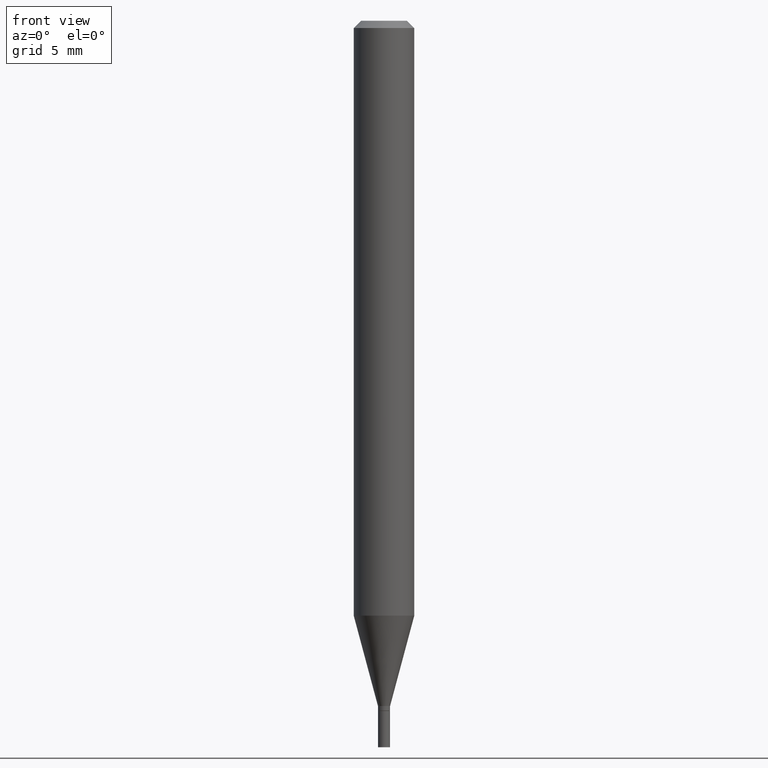
[diagram: clean part render]
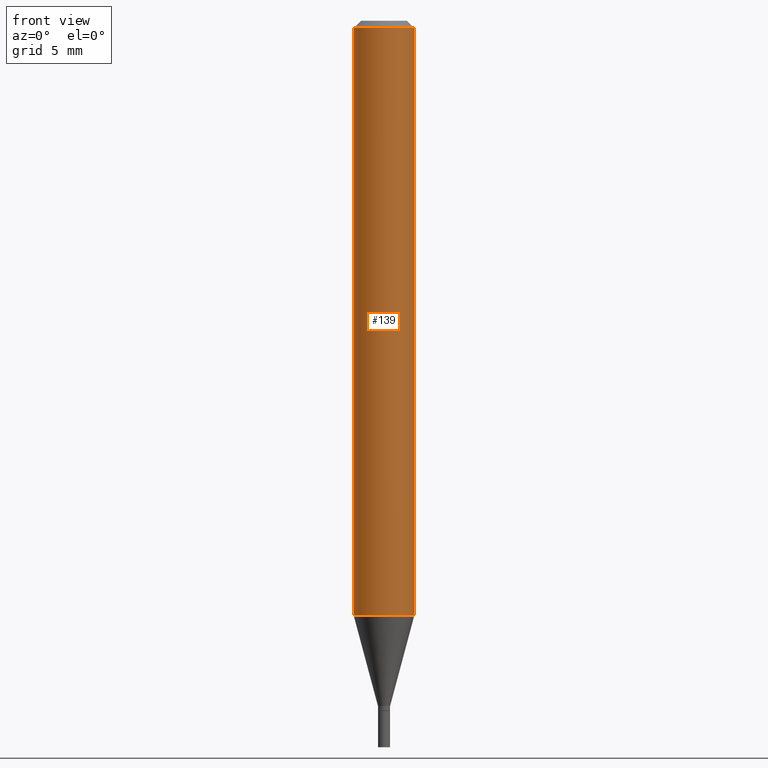
[diagram: same view with one face highlighted and labeled with its STEP entity id]
A machine part, front view. The second image highlights one B-rep face of the part: STEP entity #139.
In plain terms, the highlighted cylindrical surface (edge-blend (fillet) strip) has radius 1.5875 mm, axis along (-0, 0, 1).
Its self-contained STEP definition (entity closure, byte-faithful):
#1 = EDGE_LOOP ( 'NONE', ( #147, #62, #328, #219 ) ) ;
#20 = EDGE_CURVE ( 'NONE', #76, #345, #414, .T. ) ;
#26 = LINE ( 'NONE', #126, #421 ) ;
#44 = DIRECTION ( 'NONE',  ( 1.000000000000000000, -6.982962677686266711E-15, 4.876176775795935793E-29 ) ) ;
#51 = CARTESIAN_POINT ( 'NONE',  ( -0.06250000000000000000, -1.726560303666755986E-15, -0.01499999999999999944 ) ) ;
#62 = ORIENTED_EDGE ( 'NONE', *, *, #417, .T. ) ;
#68 = CARTESIAN_POINT ( 'NONE',  ( -0.06250000000000001388, -3.844837597100926719E-15, -1.228397459621556109 ) ) ;
#76 = VERTEX_POINT ( 'NONE', #51 ) ;
#92 = CARTESIAN_POINT ( 'NONE',  ( 3.004007669101581496E-29, -4.288926806950990124E-15, -1.228397459621556109 ) ) ;
#102 = FACE_OUTER_BOUND ( 'NONE', #1, .T. ) ;
#115 = AXIS2_PLACEMENT_3D ( 'NONE', #92, #457, #124 ) ;
#122 = DIRECTION ( 'NONE',  ( 1.000000000000000000, -6.982962677686266711E-15, 0.000000000000000000 ) ) ;
#123 = DIRECTION ( 'NONE',  ( -2.445468806185136597E-29, 3.491481338843145583E-15, 1.000000000000000000 ) ) ;
#124 = DIRECTION ( 'NONE',  ( 1.000000000000000000, -6.982962677686262766E-15, 0.000000000000000000 ) ) ;
#126 = CARTESIAN_POINT ( 'NONE',  ( 0.06250000000000000000, -4.364351673553916694E-16, 3.047610484872459871E-30 ) ) ;
#138 = DIRECTION ( 'NONE',  ( -2.445468806185136877E-29, 3.491481338843145188E-15, 1.000000000000000000 ) ) ;
#139 = ADVANCED_FACE ( 'NONE', ( #102 ), #260, .T. ) ;
#147 = ORIENTED_EDGE ( 'NONE', *, *, #188, .F. ) ;
#157 = CIRCLE ( 'NONE', #115, 0.06250000000000000000 ) ;
#188 = EDGE_CURVE ( 'NONE', #258, #76, #370, .T. ) ;
#193 = CARTESIAN_POINT ( 'NONE',  ( 3.668203209277705088E-31, -5.237222008264718399E-17, -0.01499999999999999944 ) ) ;
#197 = AXIS2_PLACEMENT_3D ( 'NONE', #193, #123, #122 ) ;
#215 = DIRECTION ( 'NONE',  ( -2.445468806185136597E-29, 3.491481338843145583E-15, 1.000000000000000000 ) ) ;
#219 = ORIENTED_EDGE ( 'NONE', *, *, #20, .F. ) ;
#256 = CARTESIAN_POINT ( 'NONE',  ( 0.000000000000000000, 0.000000000000000000, 0.000000000000000000 ) ) ;
#258 = VERTEX_POINT ( 'NONE', #68 ) ;
#260 = CYLINDRICAL_SURFACE ( 'NONE', #276, 0.06250000000000000000 ) ;
#276 = AXIS2_PLACEMENT_3D ( 'NONE', #256, #215, #44 ) ;
#323 = CARTESIAN_POINT ( 'NONE',  ( 0.06250000000000000000, -4.888073874380388472E-16, -0.01499999999999999944 ) ) ;
#328 = ORIENTED_EDGE ( 'NONE', *, *, #381, .T. ) ;
#338 = VERTEX_POINT ( 'NONE', #352 ) ;
#341 = VECTOR ( 'NONE', #138, 39.37007874015748143 ) ;
#345 = VERTEX_POINT ( 'NONE', #323 ) ;
#352 = CARTESIAN_POINT ( 'NONE',  ( 0.06250000000000001388, -4.725361974306381794E-15, -1.228397459621556109 ) ) ;
#355 = DIRECTION ( 'NONE',  ( -2.445468806185136877E-29, 3.491481338843145188E-15, 1.000000000000000000 ) ) ;
#370 = LINE ( 'NONE', #435, #341 ) ;
#381 = EDGE_CURVE ( 'NONE', #338, #345, #26, .T. ) ;
#414 = CIRCLE ( 'NONE', #197, 0.06250000000000000000 ) ;
#417 = EDGE_CURVE ( 'NONE', #258, #338, #157, .T. ) ;
#421 = VECTOR ( 'NONE', #355, 39.37007874015748143 ) ;
#435 = CARTESIAN_POINT ( 'NONE',  ( -0.06250000000000000000, 4.440892098500626162E-16, -3.074334431409316114E-30 ) ) ;
#457 = DIRECTION ( 'NONE',  ( -2.445468806185136597E-29, 3.491481338843145583E-15, 1.000000000000000000 ) ) ;